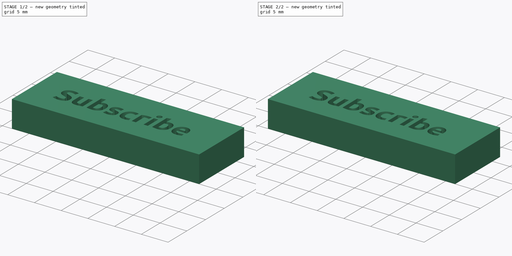
[diagram: build sequence overview — one tinted view per stage of 2, left to right]
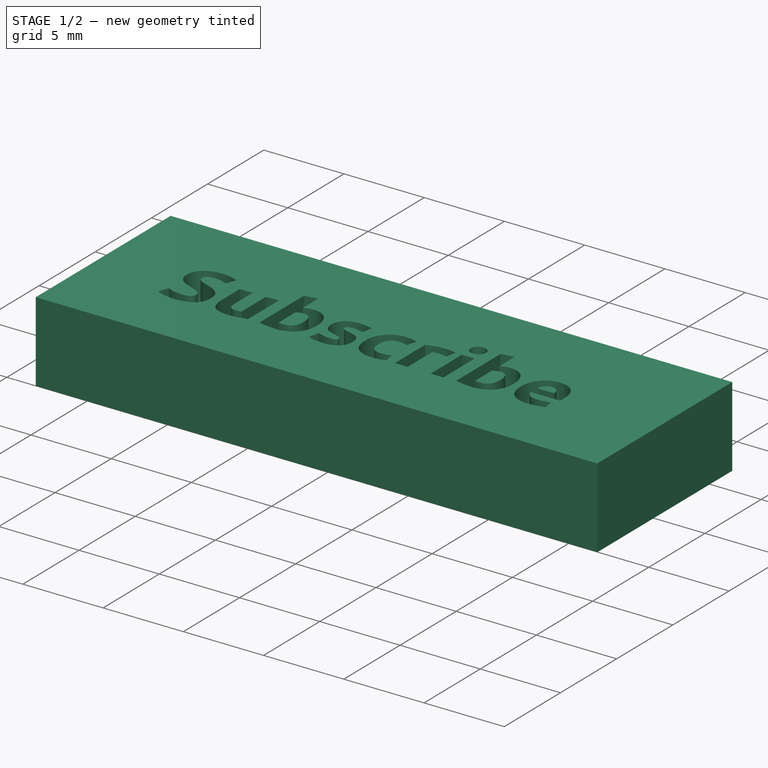
[diagram: stage 1 of 2 — iso view after this stage's code; geometry added in this stage tinted green]
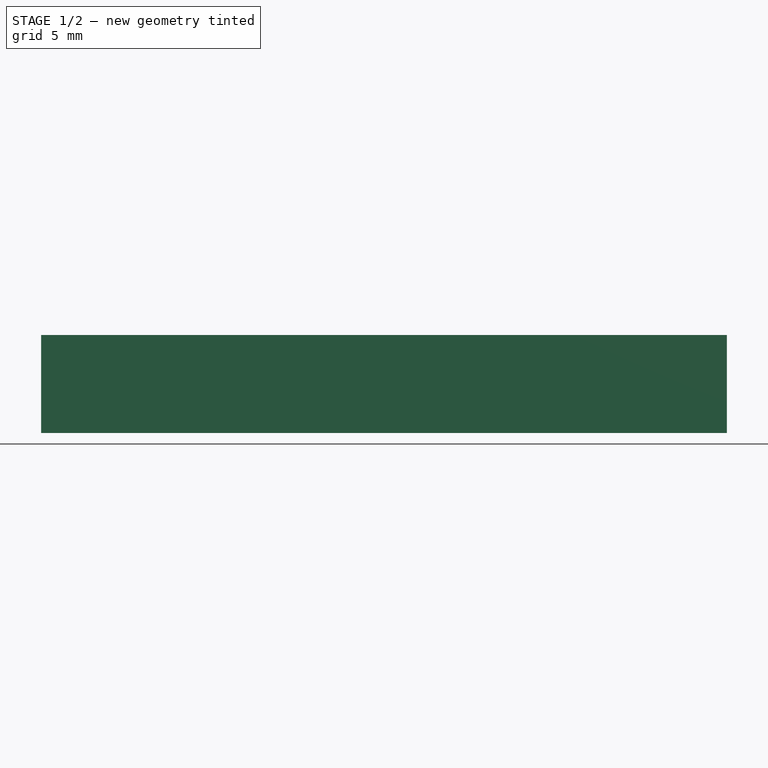
[diagram: stage 1 of 2 — front view after this stage's code; geometry added in this stage tinted green]
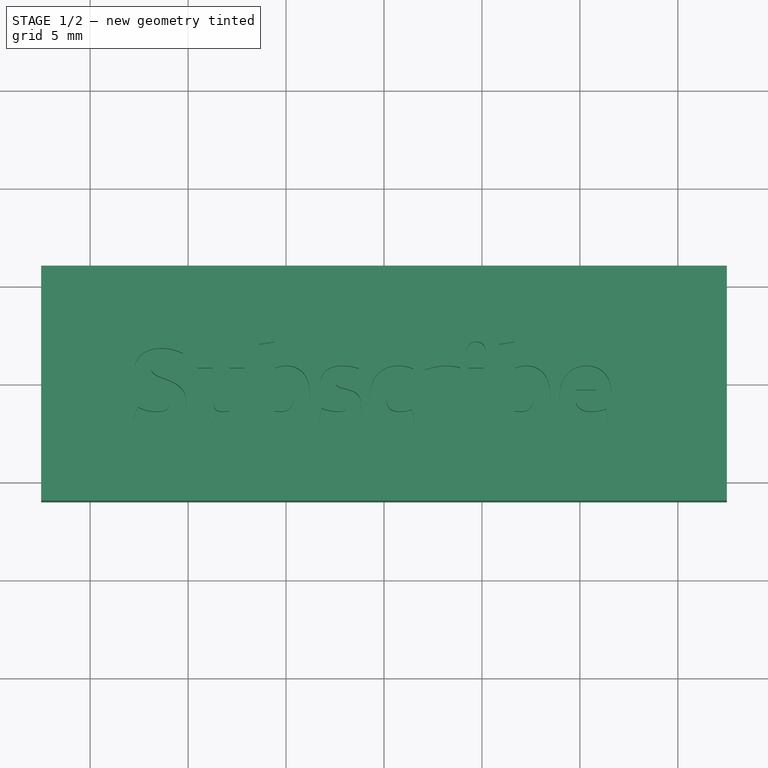
[diagram: stage 1 of 2 — top view after this stage's code; geometry added in this stage tinted green]
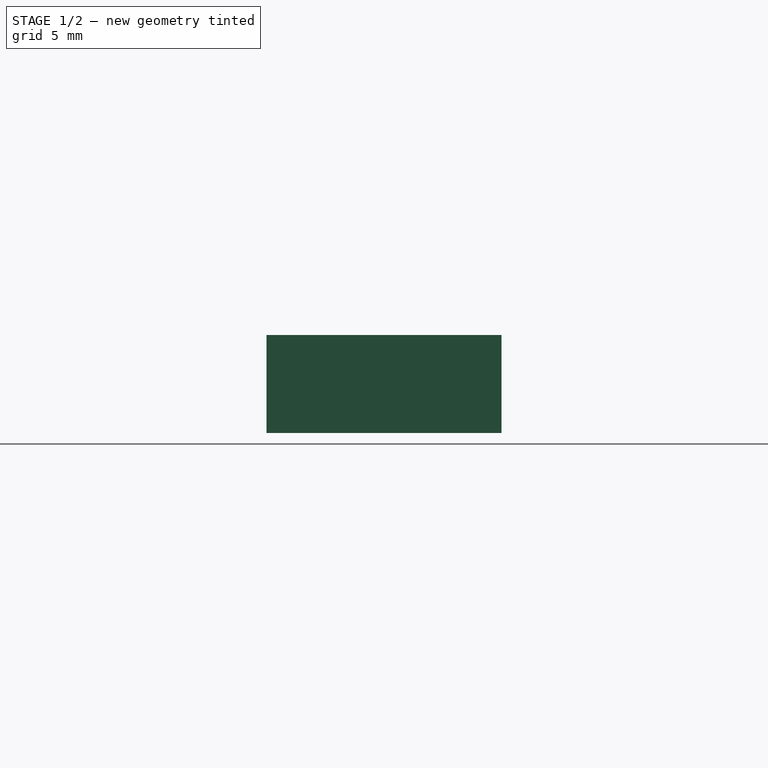
[diagram: stage 1 of 2 — right view after this stage's code; geometry added in this stage tinted green]
FCSTD DOCUMENT  (FreeCAD 2021.0205R23662 +3201 (Git))
Label: text
License: All rights reserved
LicenseURL: http://en.wikipedia.org/wiki/All_rights_reserved
objects: Sketcher::SketchObject×1, Spreadsheet::Sheet×1, PartDesign::Pad×1, Part::Part2DObjectPython×1, PartDesign::Pocket×1, PartDesign::Body×1, App::Part×1
note: 9 computed .brp shape members not serialized (recipe doc carries the construction recipe); baked Part::Feature solids carry a one-line shape summary decoded from their .brp

FEATURE [Sketcher::SketchObject] Sketch
  FullyConstrained = true
  MapMode = 5
  Support = -> [XY_Plane001]
  expr: Constraints[10] = <<parameters>>.width
  expr: Constraints[9] = <<parameters>>.length
  sketch-geometry (4):
    g0: LineSegment StartX=-17.5 StartY=6 StartZ=0 EndX=17.5 EndY=6 EndZ=0
    g1: LineSegment StartX=17.5 StartY=6 StartZ=0 EndX=17.5 EndY=-6 EndZ=0
    g2: LineSegment StartX=17.5 StartY=-6 StartZ=0 EndX=-17.5 EndY=-6 EndZ=0
    g3: LineSegment StartX=-17.5 StartY=-6 StartZ=0 EndX=-17.5 EndY=6 EndZ=0
  constraints (11):
    c: Coincident(g0,g1)
    c: Coincident(g1,g2)
    c: Coincident(g2,g3)
    c: Coincident(g3,g0)
    c: Horizontal(g0)
    c: Horizontal(g2)
    c: Vertical(g1)
    c: Vertical(g3)
    c: Symmetric(g0,g1,g-1)
    c: DistanceX(g0,g0) = 35
    c: DistanceY(g1,g1) = 12
FEATURE [Spreadsheet::Sheet] Spreadsheet  label="parameters"
  PythonMode = false
  cells = A1=length; B1(length)=35; A2=width; B2(width)=12; A3=height; B3(height)=5
FEATURE [PartDesign::Pad] Pad
  ClaimChildren = false
  Direction = (1,1,1)
  Fit = 0
  FitJoin = 0
  InnerFit = 0
  InnerFitJoin = 0
  InnerTaperAngle = 0
  InnerTaperAngleRev = 0
  Length = 5
  Length2 = 100
  NewSolid = false
  Profile = -> Sketch
  Suppress = false
  Type = 0
  expr: Length = <<parameters>>.height
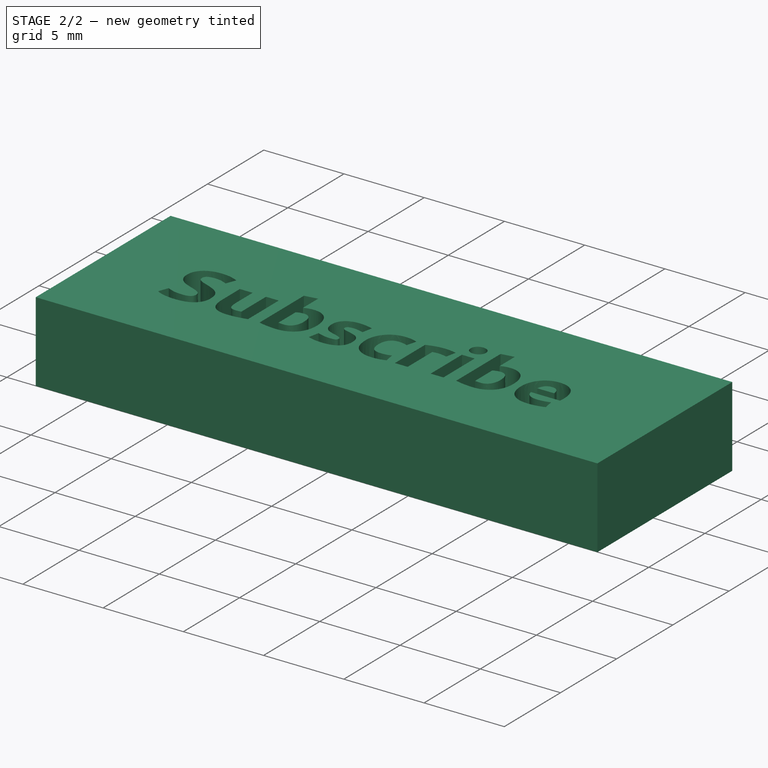
[diagram: stage 2 of 2 — iso view after this stage's code; geometry added in this stage tinted green]
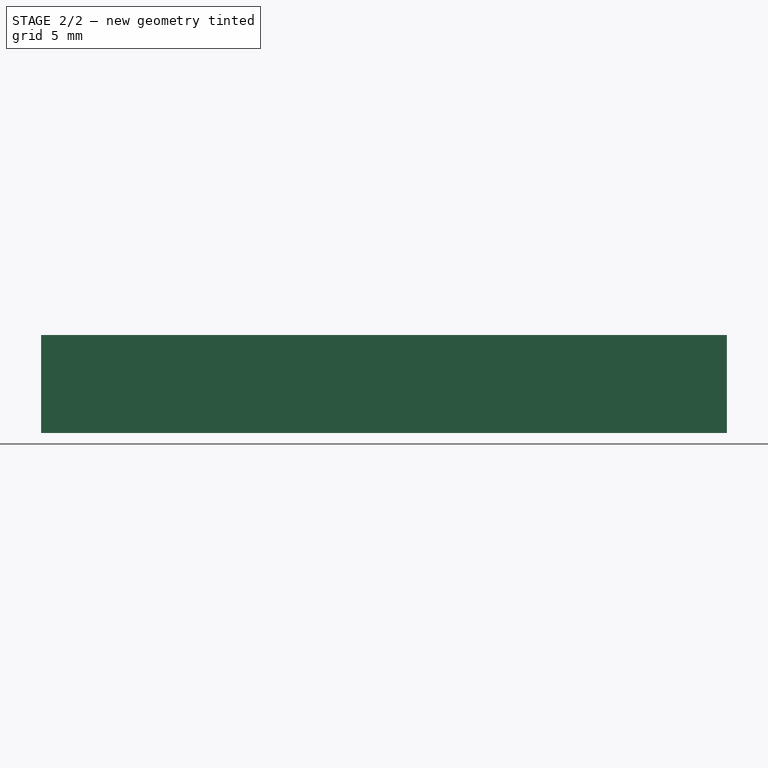
[diagram: stage 2 of 2 — front view after this stage's code; geometry added in this stage tinted green]
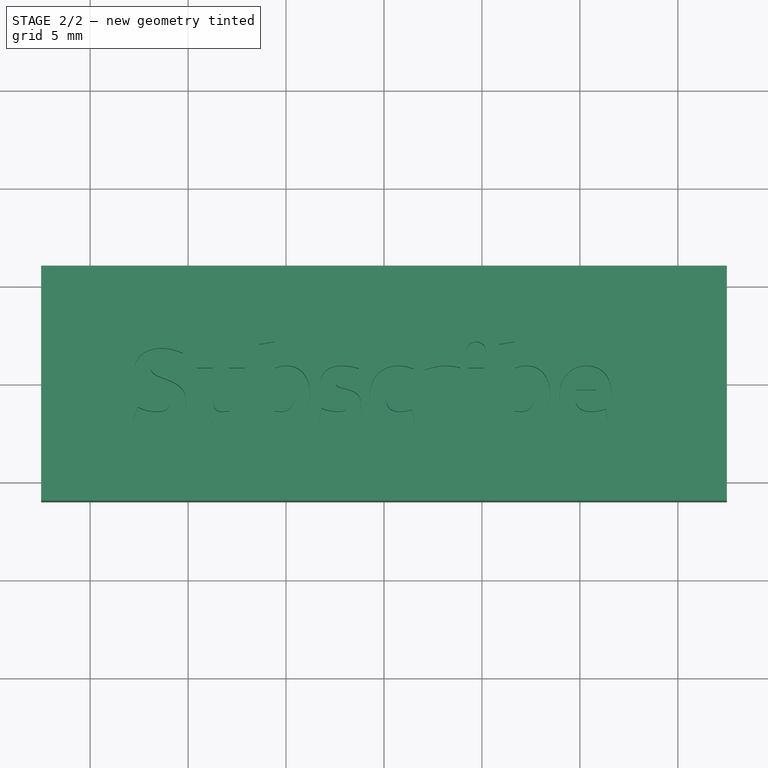
[diagram: stage 2 of 2 — top view after this stage's code; geometry added in this stage tinted green]
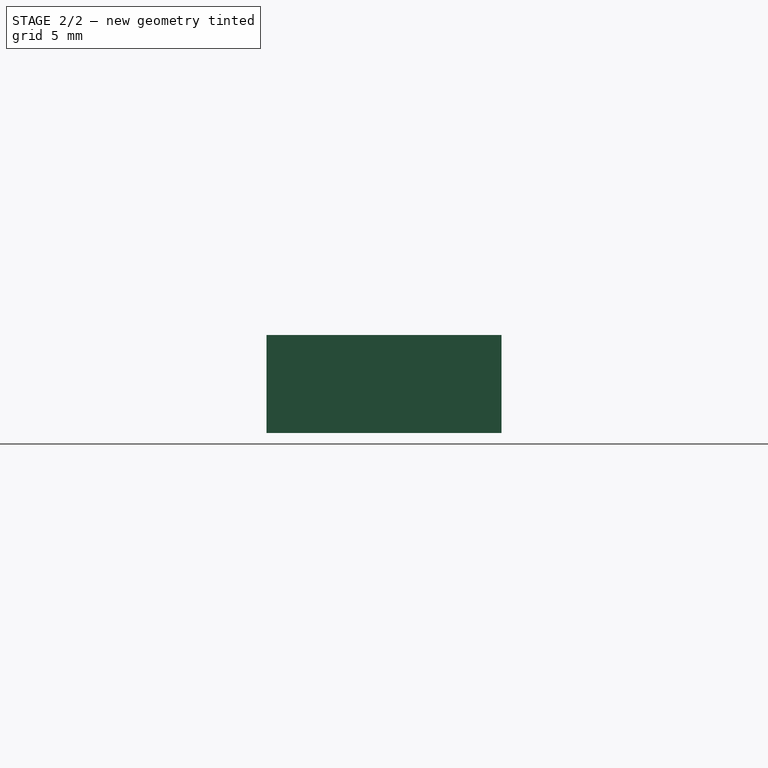
[diagram: stage 2 of 2 — right view after this stage's code; geometry added in this stage tinted green]
FEATURE [Part::Part2DObjectPython] ShapeString  # Draft 2D object (typed FeaturePython)
  FontFile = <path>
  Placement = pos=(-13,-2,5) rot=(0,0,1;0rad)
  Size = 2
  String = Subscribe
  Tracking = 0
  expr: .Placement.Base.z = <<parameters>>.height
FEATURE [PartDesign::Pocket] Pocket
  BaseFeature = -> Pad
  ClaimChildren = false
  Fit = 0
  FitJoin = 0
  InnerFit = 0
  InnerFitJoin = 0
  InnerTaperAngle = 0
  InnerTaperAngleRev = 0
  Length = 2
  Length2 = 100
  NewSolid = false
  Profile = -> ShapeString
  Suppress = false
  Type = 0
FEATURE [PartDesign::Body] Body
  AutoGroupSolids = false
  ExportMode = 0
  Group = -> [Sketch,Pad,ShapeString,Pocket]
  Origin = -> Origin001
  Tip = -> Pocket
  _ExportChildren = -> [Pad,Pocket]
  _GroupVersion = 1
FEATURE [App::Part] Part
  ExportMode = 1
  Group = -> [Body,ShapeString]
  Origin = -> Origin
  _ExportChildren = -> [Body,ShapeString]
  _GroupVersion = 1
note: 1 file-system path scrubbed to <path> (originals preserved in the JSON sidecar)
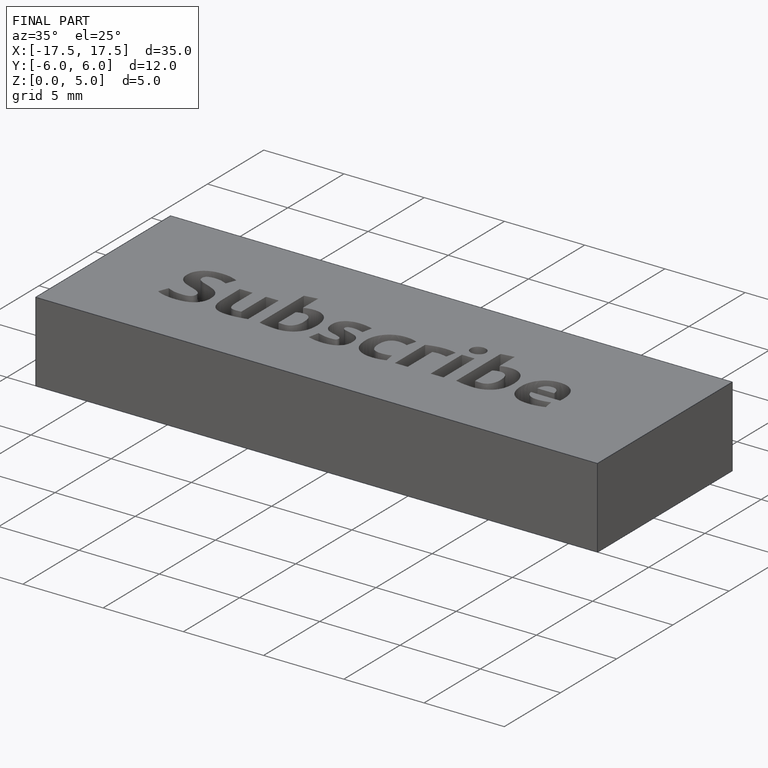
[diagram: finished part — iso view with bounding-box wireframe]
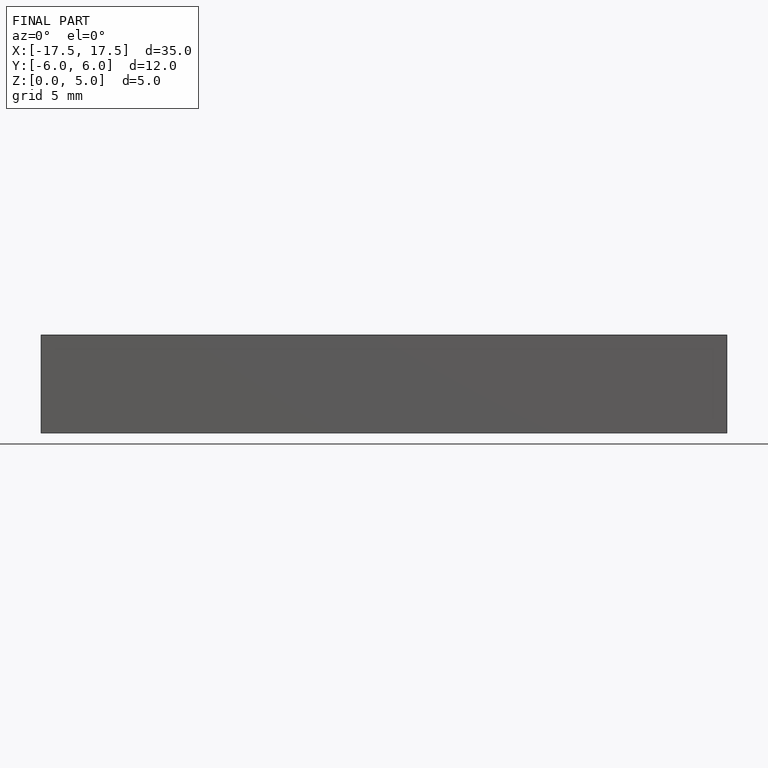
[diagram: finished part — front view with bounding-box wireframe]
